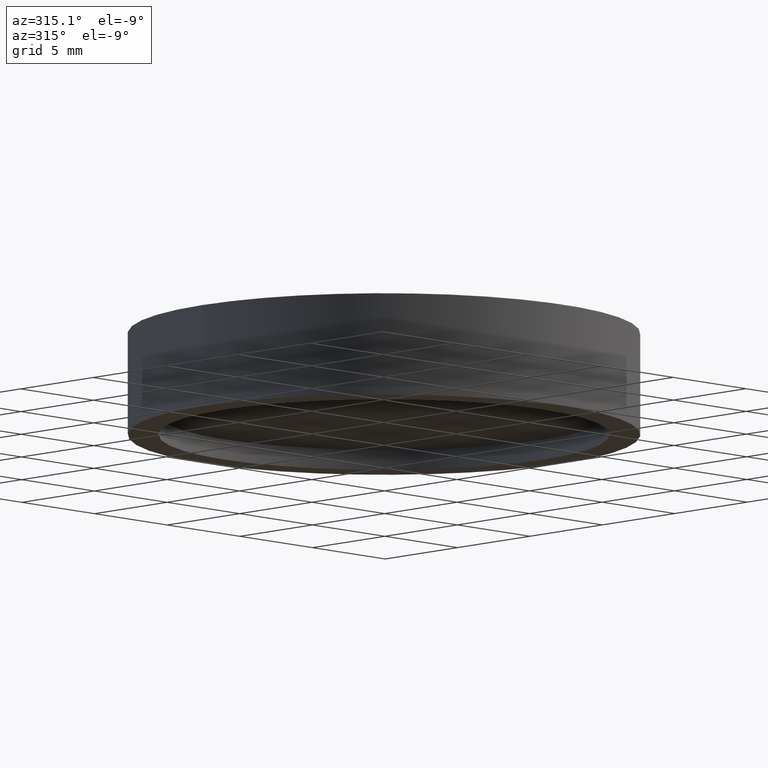
[diagram: clean part render]
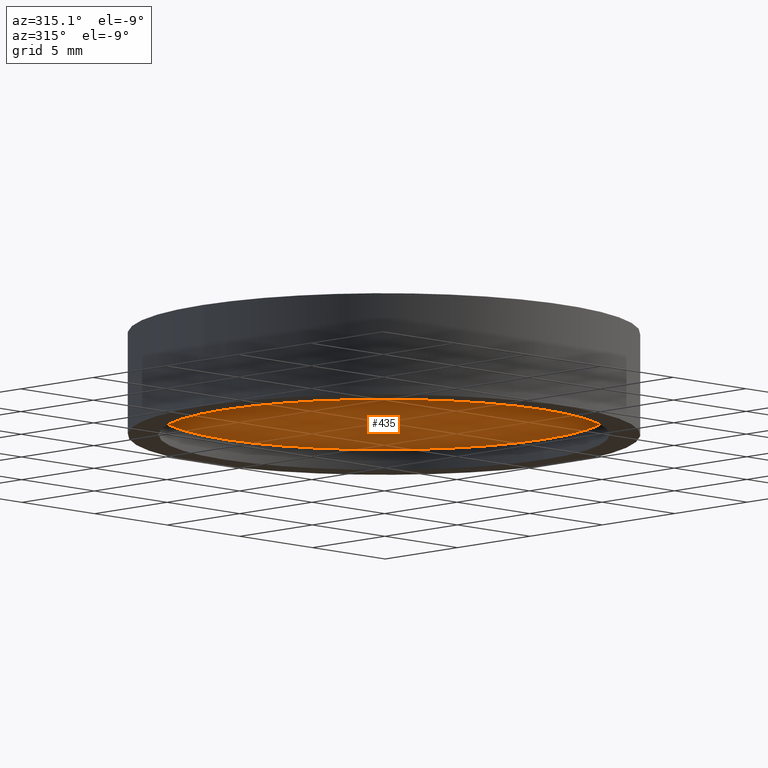
[diagram: same view with one face highlighted and labeled with its STEP entity id]
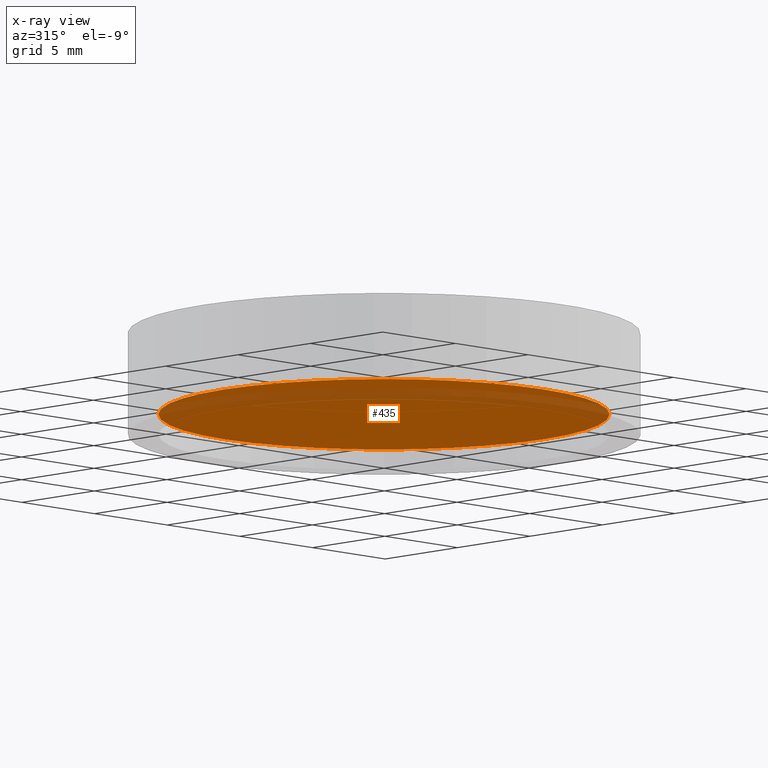
[diagram: x-ray of the same camera — body ghosted, the highlighted face saturated]
A machine part, auxiliary view. The second image highlights one B-rep face of the part: STEP entity #435.
The next image is the same camera in x-ray: the body ghosted, the highlighted face saturated — about 24% of this face is hidden behind the body in this view.
In plain terms, the highlighted planar face has unit normal (0, 0, -1).
Its self-contained STEP definition (entity closure, byte-faithful):
#8 = CARTESIAN_POINT ( 'NONE',  ( 0.0000000000000000000, 0.0000000000000000000, 0.3809999999999997300 ) ) ;
#15 = DIRECTION ( 'NONE',  ( -1.000000000000000000, 0.0000000000000000000, 0.0000000000000000000 ) ) ;
#123 = PLANE ( 'NONE',  #727 ) ;
#161 = EDGE_LOOP ( 'NONE', ( #423, #384 ) ) ;
#236 = DIRECTION ( 'NONE',  ( 0.0000000000000000000, 0.0000000000000000000, -1.000000000000000000 ) ) ;
#276 = CARTESIAN_POINT ( 'NONE',  ( -11.00000000000000000, 0.0000000000000000000, 0.3809999999999997300 ) ) ;
#369 = AXIS2_PLACEMENT_3D ( 'NONE', #572, #236, #15 ) ;
#384 = ORIENTED_EDGE ( 'NONE', *, *, #567, .T. ) ;
#389 = DIRECTION ( 'NONE',  ( 0.0000000000000000000, 0.0000000000000000000, -1.000000000000000000 ) ) ;
#423 = ORIENTED_EDGE ( 'NONE', *, *, #569, .T. ) ;
#427 = CIRCLE ( 'NONE', #608, 11.00000000000000000 ) ;
#435 = ADVANCED_FACE ( 'NONE', ( #706 ), #123, .T. ) ;
#461 = VERTEX_POINT ( 'NONE', #276 ) ;
#463 = DIRECTION ( 'NONE',  ( -1.000000000000000000, 0.0000000000000000000, 0.0000000000000000000 ) ) ;
#510 = CARTESIAN_POINT ( 'NONE',  ( 0.0000000000000000000, 0.0000000000000000000, 0.3809999999999997300 ) ) ;
#567 = EDGE_CURVE ( 'NONE', #714, #461, #427, .T. ) ;
#569 = EDGE_CURVE ( 'NONE', #461, #714, #613, .T. ) ;
#572 = CARTESIAN_POINT ( 'NONE',  ( 0.0000000000000000000, 0.0000000000000000000, 0.3809999999999997300 ) ) ;
#608 = AXIS2_PLACEMENT_3D ( 'NONE', #510, #629, #463 ) ;
#613 = CIRCLE ( 'NONE', #369, 11.00000000000000000 ) ;
#617 = DIRECTION ( 'NONE',  ( -1.000000000000000000, 0.0000000000000000000, -0.0000000000000000000 ) ) ;
#629 = DIRECTION ( 'NONE',  ( 0.0000000000000000000, 0.0000000000000000000, -1.000000000000000000 ) ) ;
#685 = CARTESIAN_POINT ( 'NONE',  ( 11.00000000000000000, 1.347111479062088400E-015, 0.3809999999999997300 ) ) ;
#706 = FACE_OUTER_BOUND ( 'NONE', #161, .T. ) ;
#714 = VERTEX_POINT ( 'NONE', #685 ) ;
#727 = AXIS2_PLACEMENT_3D ( 'NONE', #8, #389, #617 ) ;